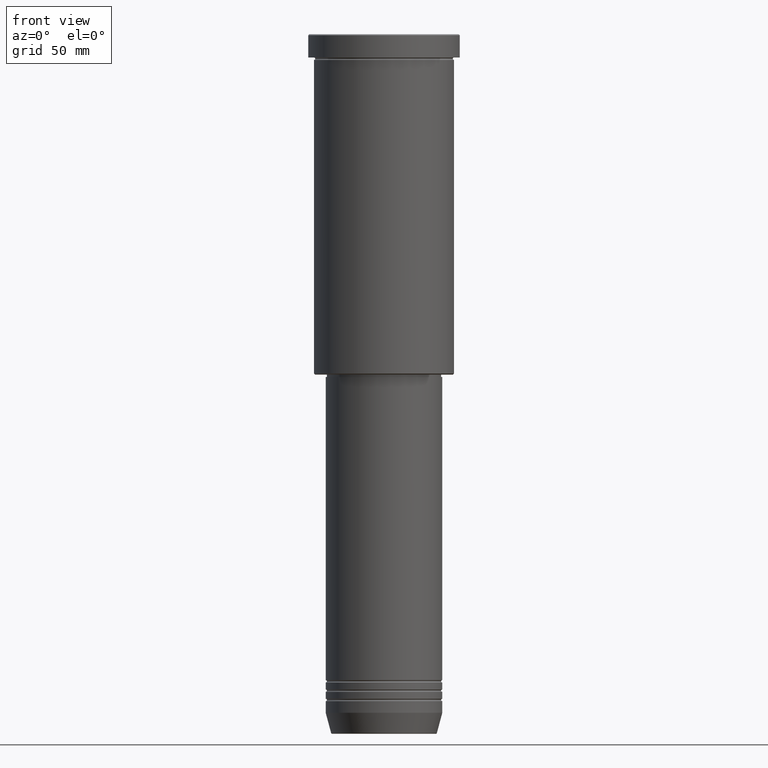
[diagram: clean part render]
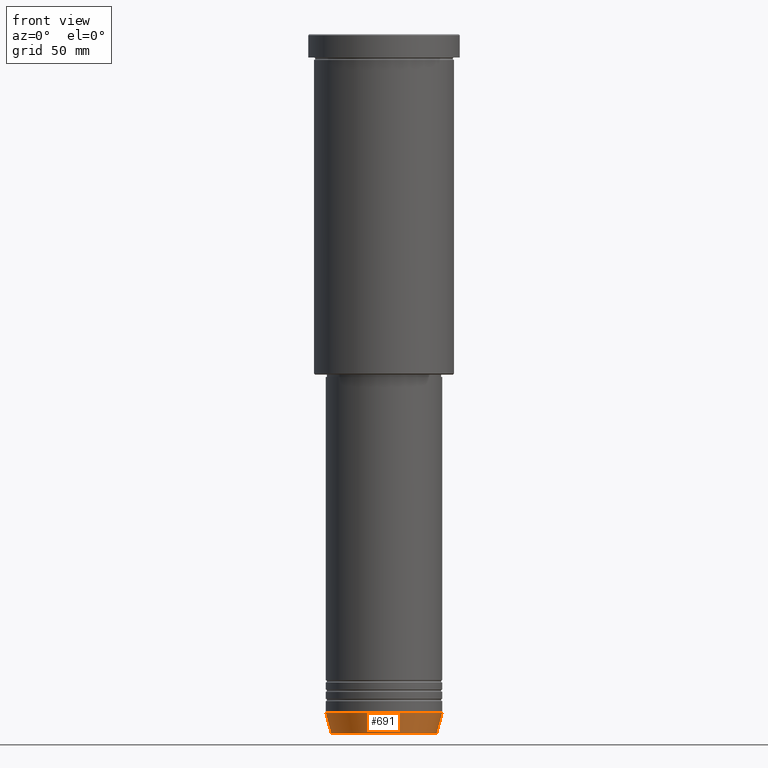
[diagram: same view with one face highlighted and labeled with its STEP entity id]
A machine part, front view. The second image highlights one B-rep face of the part: STEP entity #691.
In plain terms, the highlighted conical surface has half-angle 15 deg.
Its self-contained STEP definition (entity closure, byte-faithful):
#4 = CARTESIAN_POINT ( 'NONE',  ( 22.68775668727494477, 0.000000000000000000, -299.6294095225512137 ) ) ;
#11 = VECTOR ( 'NONE', #720, 1000.000000000000114 ) ;
#72 = FACE_OUTER_BOUND ( 'NONE', #911, .T. ) ;
#81 = CARTESIAN_POINT ( 'NONE',  ( 0.000000000000000000, 0.000000000000000000, -291.0000000000000000 ) ) ;
#105 = CONICAL_SURFACE ( 'NONE', #248, 25.00000000000000000, 0.2617993877991502960 ) ;
#165 = CARTESIAN_POINT ( 'NONE',  ( -25.00000000000000000, 3.061616997868383043E-15, -291.0000000000000000 ) ) ;
#189 = EDGE_CURVE ( 'NONE', #500, #376, #1051, .T. ) ;
#201 = CARTESIAN_POINT ( 'NONE',  ( -25.00000000000000000, 3.061616997868383043E-15, -291.0000000000000000 ) ) ;
#227 = DIRECTION ( 'NONE',  ( 1.000000000000000000, 0.000000000000000000, 0.000000000000000000 ) ) ;
#248 = AXIS2_PLACEMENT_3D ( 'NONE', #1071, #1076, #227 ) ;
#280 = EDGE_CURVE ( 'NONE', #552, #500, #342, .T. ) ;
#285 = ORIENTED_EDGE ( 'NONE', *, *, #914, .F. ) ;
#290 = VERTEX_POINT ( 'NONE', #201 ) ;
#301 = CARTESIAN_POINT ( 'NONE',  ( -22.68775668727494477, 2.920032929279452581E-15, -299.6294095225512137 ) ) ;
#325 = VECTOR ( 'NONE', #872, 1000.000000000000114 ) ;
#342 = CIRCLE ( 'NONE', #1017, 22.68775668727494477 ) ;
#344 = CIRCLE ( 'NONE', #959, 25.00000000000000000 ) ;
#376 = VERTEX_POINT ( 'NONE', #982 ) ;
#390 = EDGE_CURVE ( 'NONE', #290, #376, #344, .T. ) ;
#500 = VERTEX_POINT ( 'NONE', #4 ) ;
#552 = VERTEX_POINT ( 'NONE', #301 ) ;
#617 = LINE ( 'NONE', #165, #11 ) ;
#638 = DIRECTION ( 'NONE',  ( -0.000000000000000000, -0.000000000000000000, 1.000000000000000000 ) ) ;
#641 = ORIENTED_EDGE ( 'NONE', *, *, #280, .T. ) ;
#655 = CARTESIAN_POINT ( 'NONE',  ( 0.000000000000000000, 0.000000000000000000, -299.6294095225512137 ) ) ;
#691 = ADVANCED_FACE ( 'NONE', ( #72 ), #105, .T. ) ;
#720 = DIRECTION ( 'NONE',  ( -0.2588190451025215166, 3.169619151431774802E-17, 0.9659258262890679791 ) ) ;
#723 = DIRECTION ( 'NONE',  ( 1.000000000000000000, 0.000000000000000000, 0.000000000000000000 ) ) ;
#872 = DIRECTION ( 'NONE',  ( 0.2588190451025215166, 0.000000000000000000, 0.9659258262890679791 ) ) ;
#911 = EDGE_LOOP ( 'NONE', ( #285, #641, #1142, #1002 ) ) ;
#914 = EDGE_CURVE ( 'NONE', #552, #290, #617, .T. ) ;
#959 = AXIS2_PLACEMENT_3D ( 'NONE', #81, #1173, #723 ) ;
#960 = CARTESIAN_POINT ( 'NONE',  ( 25.00000000000000000, 0.000000000000000000, -291.0000000000000000 ) ) ;
#982 = CARTESIAN_POINT ( 'NONE',  ( 25.00000000000000000, 0.000000000000000000, -291.0000000000000000 ) ) ;
#1002 = ORIENTED_EDGE ( 'NONE', *, *, #390, .F. ) ;
#1017 = AXIS2_PLACEMENT_3D ( 'NONE', #655, #638, #1026 ) ;
#1026 = DIRECTION ( 'NONE',  ( 1.000000000000000000, 0.000000000000000000, 0.000000000000000000 ) ) ;
#1051 = LINE ( 'NONE', #960, #325 ) ;
#1071 = CARTESIAN_POINT ( 'NONE',  ( 0.000000000000000000, 0.000000000000000000, -291.0000000000000000 ) ) ;
#1076 = DIRECTION ( 'NONE',  ( -0.000000000000000000, -0.000000000000000000, 1.000000000000000000 ) ) ;
#1142 = ORIENTED_EDGE ( 'NONE', *, *, #189, .T. ) ;
#1173 = DIRECTION ( 'NONE',  ( -0.000000000000000000, -0.000000000000000000, 1.000000000000000000 ) ) ;